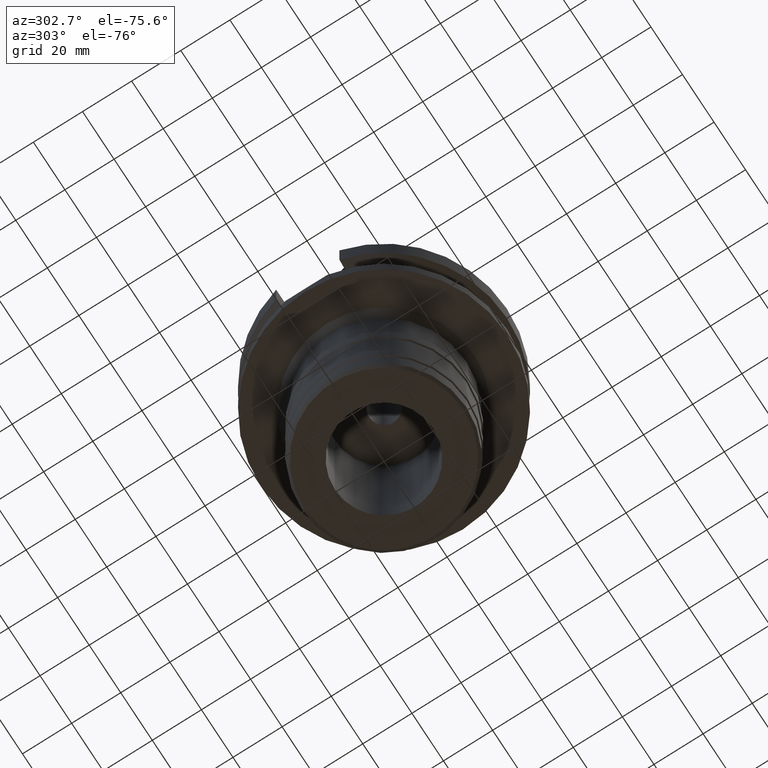
[diagram: clean part render]
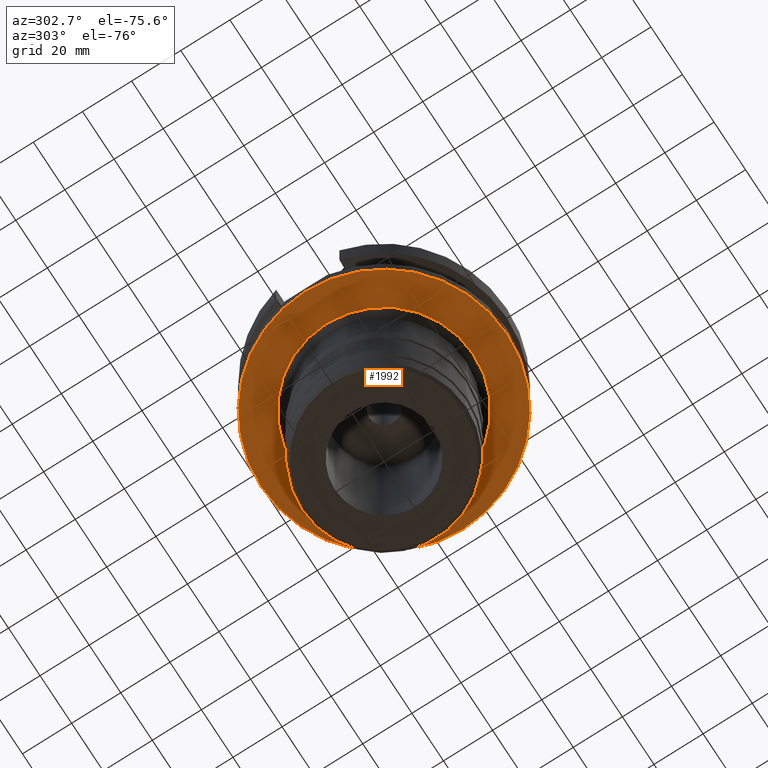
[diagram: same view with one face highlighted and labeled with its STEP entity id]
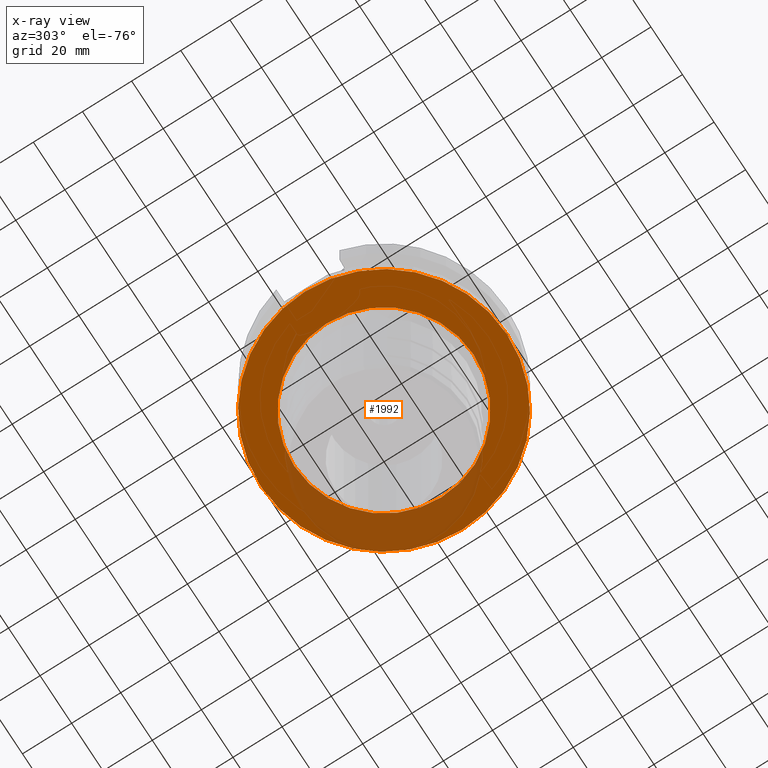
[diagram: x-ray of the same camera — body ghosted, the highlighted face saturated]
A machine part, auxiliary view. The second image highlights one B-rep face of the part: STEP entity #1992.
The next image is the same camera in x-ray: the body ghosted, the highlighted face saturated — about 23% of this face is hidden behind the body in this view.
In plain terms, the highlighted planar face has unit normal (0, 0, -1).
Its self-contained STEP definition (entity closure, byte-faithful):
#592=CARTESIAN_POINT('',(0.E0,1.373318920564E-14,-3.8E1));
#593=DIRECTION('',(0.E0,0.E0,1.E0));
#594=DIRECTION('',(0.E0,-1.E0,0.E0));
#595=AXIS2_PLACEMENT_3D('',#592,#593,#594);
#600=CARTESIAN_POINT('',(0.E0,1.373318920564E-14,-3.8E1));
#601=DIRECTION('',(0.E0,0.E0,1.E0));
#602=DIRECTION('',(0.E0,1.E0,0.E0));
#603=AXIS2_PLACEMENT_3D('',#600,#601,#602);
#608=CARTESIAN_POINT('',(0.E0,0.E0,-3.8E1));
#609=DIRECTION('',(0.E0,0.E0,-1.E0));
#610=DIRECTION('',(0.E0,-1.E0,0.E0));
#611=AXIS2_PLACEMENT_3D('',#608,#609,#610);
#616=CARTESIAN_POINT('',(0.E0,0.E0,-3.8E1));
#617=DIRECTION('',(0.E0,0.E0,-1.E0));
#618=DIRECTION('',(0.E0,1.E0,0.E0));
#619=AXIS2_PLACEMENT_3D('',#616,#617,#618);
#1322=CARTESIAN_POINT('',(0.E0,3.65E1,-3.8E1));
#1323=VERTEX_POINT('',#1322);
#1324=CARTESIAN_POINT('',(0.E0,-3.65E1,-3.8E1));
#1325=VERTEX_POINT('',#1324);
#1326=CARTESIAN_POINT('',(0.E0,-5.E1,-3.8E1));
#1327=CARTESIAN_POINT('',(0.E0,5.E1,-3.8E1));
#1328=VERTEX_POINT('',#1326);
#1329=VERTEX_POINT('',#1327);
#1977=CARTESIAN_POINT('',(0.E0,0.E0,-3.8E1));
#1978=DIRECTION('',(0.E0,0.E0,-1.E0));
#1979=DIRECTION('',(0.E0,-1.E0,0.E0));
#1980=AXIS2_PLACEMENT_3D('',#1977,#1978,#1979);
#1981=PLANE('',#1980);
#1983=ORIENTED_EDGE('',*,*,#1982,.T.);
#1985=ORIENTED_EDGE('',*,*,#1984,.T.);
#1986=EDGE_LOOP('',(#1983,#1985));
#1987=FACE_OUTER_BOUND('',#1986,.F.);
#1988=ORIENTED_EDGE('',*,*,#1970,.T.);
#1989=ORIENTED_EDGE('',*,*,#1959,.T.);
#1990=EDGE_LOOP('',(#1988,#1989));
#1991=FACE_BOUND('',#1990,.F.);
#596=CIRCLE('',#595,5.E1);
#604=CIRCLE('',#603,5.E1);
#612=CIRCLE('',#611,3.65E1);
#620=CIRCLE('',#619,3.65E1);
#1959=EDGE_CURVE('',#1323,#1325,#620,.T.);
#1970=EDGE_CURVE('',#1325,#1323,#612,.T.);
#1982=EDGE_CURVE('',#1328,#1329,#596,.T.);
#1984=EDGE_CURVE('',#1329,#1328,#604,.T.);
#1992=ADVANCED_FACE('',(#1987,#1991),#1981,.T.);